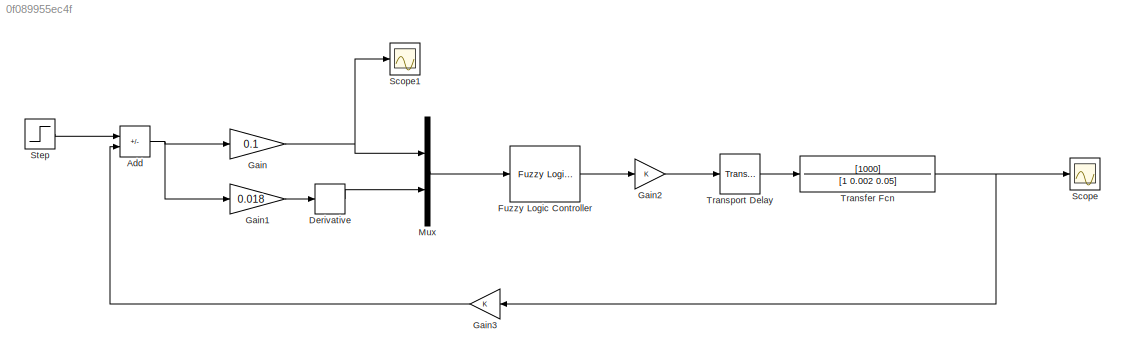
MODEL slx_0f089955ec4f
KIND model
CONFIG AbsTol = auto
CONFIG EnableMultiTasking = off
CONFIG FixedStep = auto
CONFIG MaxStep = auto
CONFIG MinStep = auto
CONFIG RelTol = 1e-3
CONFIG SampleTimeConstraint = Unconstrained
CONFIG SolverName = VariableStepAuto
CONFIG StartTime = 0.0
CONFIG StopTime = 1.5
BLOCK [Sum] Add
  IconShape = rectangular
  Inputs = +-
BLOCK [Derivative] Derivative
BLOCK [Reference] Fuzzy Logic Controller  REF=fuzblock/Fuzzy Logic   (lib defined in mdl_858b3b3e7478)
Controller
  SourceBlock = fuzblock/Fuzzy Logic \nController
  SourceType = Fuzzy Inference System
BLOCK [Gain] Gain
  Gain = 0.1
BLOCK [Gain] Gain1
  Gain = 0.018
BLOCK [Gain] Gain2
BLOCK [Gain] Gain3
BLOCK [Mux] Mux
  DisplayOption = bar
  Inputs = 2
BLOCK [Scope] Scope
  Floating = off
  NumInputPorts = 1
  ScopeSpecificationString = Simulink.scopes.TimeScopeBlockCfg('CurrentConfiguration', extmgr.ConfigurationSet(extmgr.Configuration('Core','General UI',true),extmgr.Configuration('Core','Source UI',true),extmgr.Configuration('Sources','WiredSimulink',true),extmgr.Configuration('Visuals','Time Domain',true,'SerializedDisplays',{struct('MinYLimReal','-0.13295','MaxYLimReal','1.19656','YLabelReal','','MinYLimMag','0.00000','MaxY...<+1332ch>
BLOCK [Scope] Scope1
  Floating = off
  NumInputPorts = 1
  ScopeSpecificationString = Simulink.scopes.TimeScopeBlockCfg('CurrentConfiguration', extmgr.ConfigurationSet(extmgr.Configuration('Core','General UI',true),extmgr.Configuration('Core','Source UI',true),extmgr.Configuration('Sources','WiredSimulink',true,'DataLoggingVariableName','ScopeData1'),extmgr.Configuration('Visuals','Time Domain',true,'SerializedDisplays',{struct('MinYLimReal','-0.01966','MaxYLimReal','0.1133','YLabe...<+1359ch>
BLOCK [Step] Step
  SampleTime = 0
  Time = 0.05
BLOCK [TransferFcn] Transfer Fcn
  Denominator = [1 0.002 0.05]
  Numerator = [1000]
BLOCK [TransportDelay] Transport Delay
  DelayTime = 0.05
NET Add:1 -> Gain1:1, Gain:1
LINE Derivative:1 -> Mux:2
LINE Fuzzy Logic Controller:1 -> Gain2:1
LINE Gain1:1 -> Derivative:1
LINE Gain2:1 -> Transport Delay:1
LINE Gain3:1 -> Add:2
NET Gain:1 -> Mux:1, Scope1:1
LINE Mux:1 -> Fuzzy Logic Controller:1
LINE Step:1 -> Add:1
NET Transfer Fcn:1 -> Gain3:1, Scope:1
LINE Transport Delay:1 -> Transfer Fcn:1
note: NET lines group one-source signal fan-out (src -> all destinations, sorted); 1:1 wires keep LINE
